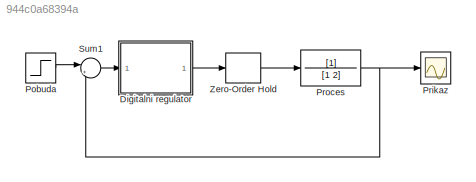
MODEL slx_944c0a68394a
KIND model
CONFIG AbsTol = auto
CONFIG EnableMultiTasking = on
CONFIG FixedStep = auto
CONFIG MaxStep = auto
CONFIG MinStep = auto
CONFIG RelTol = 1e-3
CONFIG SampleTimeConstraint = Unconstrained
CONFIG Solver = ode45
CONFIG SolverName = ode45
CONFIG StartTime = 0.0
CONFIG StopTime = 10.0
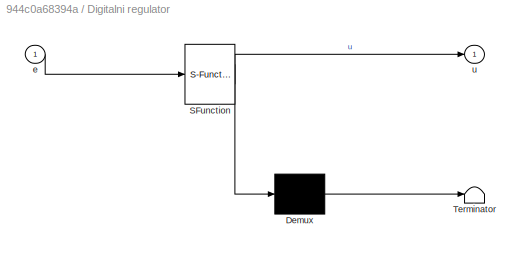
BLOCK [SubSystem] Digitalni regulator
  ErrorFcn = Stateflow.Translate.translate
  PermitHierarchicalResolution = ExplicitOnly
  Ports = [1, 1]
  RequestExecContextInheritance = off
  SFBlockType = MATLAB Function
  TreatAsAtomicUnit = on
  Variant = off
BLOCK [Demux] Digitalni regulator/ Demux 
  Outputs = 1
  Ports = [1, 1]
BLOCK [S-Function] Digitalni regulator/ SFunction 
  EnableBusSupport = on
  FunctionName = sf_sfun
  Parameters = T,ki,kp
  PortCounts = [1 2]
  Ports = [1, 2]
  SFcnIsStateOwnerBlock = off
  SFunctionDeploymentMode = off
  Tag = Stateflow S-Function Zadatak1_2012 2
BLOCK [Terminator] Digitalni regulator/ Terminator 
BLOCK [Inport] Digitalni regulator/e
  IconDisplay = Port number
BLOCK [Outport] Digitalni regulator/u
  IconDisplay = Port number
BLOCK [Step] Pobuda
  SampleTime = 0
  Time = 0
BLOCK [Scope] Prikaz
  NumInputPorts = 1
  Ports = [1]
  ScopeSpecificationString = Simulink.scopes.TimeScopeBlockCfg('CurrentConfiguration', extmgr.ConfigurationSet(extmgr.Configuration('Core','General UI',true,'FigureColor',[0.156862745098039 0.156862745098039 0.156862745098039]),extmgr.Configuration('Core','Source UI',true),extmgr.Configuration('Sources','WiredSimulink',true,'DataLoggingLimitDataPoints',true,'DataLoggingSaveFormat','Array','DataLoggingDecimation','1','DataLogg...<+2735ch>
BLOCK [TransferFcn] Proces
  Denominator = [1 2]
BLOCK [Sum] Sum1
  IconShape = round
  InputSameDT = off
  Inputs = |+-
  OutDataTypeStr = Inherit: Inherit via internal rule
  Ports = [2, 1]
  SaturateOnIntegerOverflow = off
BLOCK [ZeroOrderHold] Zero-Order Hold
  SampleTime = T
LINE Digitalni regulator:1 -> Zero-Order Hold:1
LINE Pobuda:1 -> Sum1:1
NET Proces:1 -> Prikaz:1, Sum1:2
LINE Sum1:1 -> Digitalni regulator:1
LINE Zero-Order Hold:1 -> Proces:1
note: NET lines group one-source signal fan-out (src -> all destinations, sorted); 1:1 wires keep LINE
CHART Digitalni regulator states=1 transitions=1
  STATE_LABEL 'eML_blk_kernel()'
  STATE_LABEL 'SCRIPT:\nfunction u = fcn(e, T, ki, kp)\npersistent ep up;\n\n% Inicijalizacija persistent promenljivih\nif isempty(ep)\n    ep = 0;\nend\n\nif isempty(up)\n    up = 0;\nend\n\n% Upravljacki algoritam\nu = up + (kp + ki*T)*e - kp*ep;\n\n% Azuriranje promenljivih\nup = u;\nep = e;'
